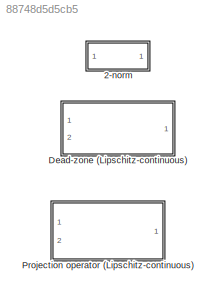
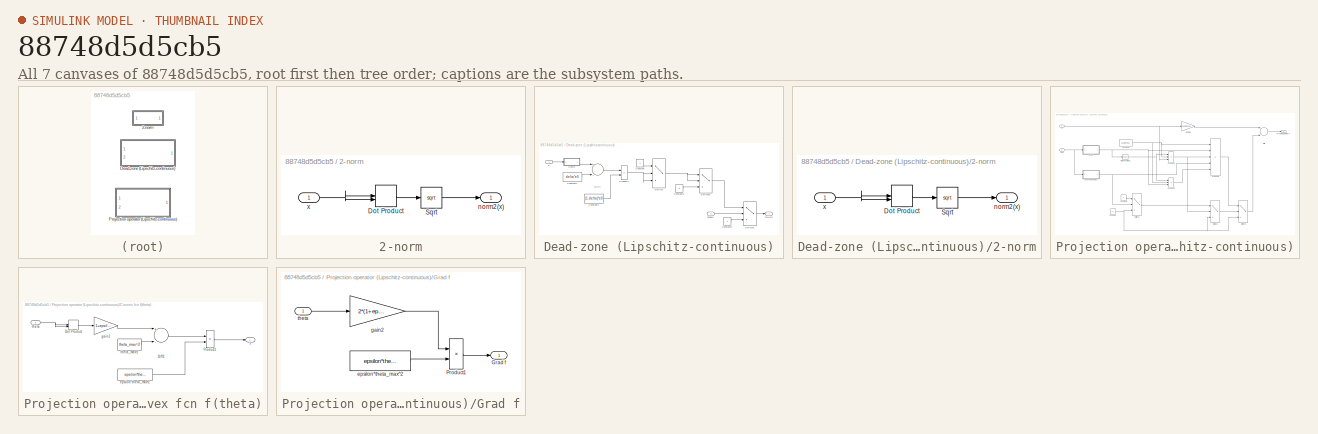
[diagram: thumbnail index - all 7 canvases of the model, root first then tree order]
MODEL slx_88748d5d5cb5
KIND model
BLOCK [SubSystem] 2-norm
  FunctionWithSeparateData = off
  MaskHideContents = off
  MinAlgLoopOccurrences = off
  Opaque = off
  Ports = [1, 1]
  PropExecContextOutsideSubsystem = off
  RTWSystemCode = Auto
  RequestExecContextInheritance = off
BLOCK [DotProduct] 2-norm/Dot Product
  OutDataTypeStr = Inherit: Inherit via internal rule
BLOCK [Sqrt] 2-norm/Sqrt
BLOCK [Outport] 2-norm/norm2(x)
  IconDisplay = Port number
BLOCK [Inport] 2-norm/x
  IconDisplay = Port number
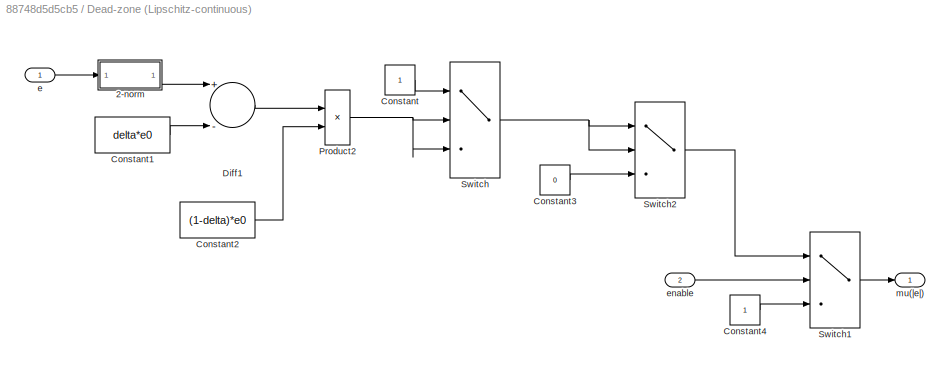
BLOCK [SubSystem] Dead-zone (Lipschitz-continuous)
  FunctionWithSeparateData = off
  MaskHideContents = off
  MinAlgLoopOccurrences = off
  Opaque = off
  Ports = [2, 1]
  PropExecContextOutsideSubsystem = off
  RTWSystemCode = Auto
  RequestExecContextInheritance = off
BLOCK [SubSystem] Dead-zone (Lipschitz-continuous)/2-norm
  FunctionWithSeparateData = off
  MaskHideContents = off
  MinAlgLoopOccurrences = off
  Opaque = off
  Ports = [1, 1]
  PropExecContextOutsideSubsystem = off
  RTWSystemCode = Auto
  RequestExecContextInheritance = off
BLOCK [DotProduct] Dead-zone (Lipschitz-continuous)/2-norm/Dot Product
  OutDataTypeStr = Inherit: Inherit via internal rule
BLOCK [Sqrt] Dead-zone (Lipschitz-continuous)/2-norm/Sqrt
BLOCK [Outport] Dead-zone (Lipschitz-continuous)/2-norm/norm2(x)
  IconDisplay = Port number
BLOCK [Inport] Dead-zone (Lipschitz-continuous)/2-norm/x
  IconDisplay = Port number
BLOCK [Constant] Dead-zone (Lipschitz-continuous)/Constant
BLOCK [Constant] Dead-zone (Lipschitz-continuous)/Constant1
  Value = delta*e0
BLOCK [Constant] Dead-zone (Lipschitz-continuous)/Constant2
  Value = (1-delta)*e0
BLOCK [Constant] Dead-zone (Lipschitz-continuous)/Constant3
  Value = 0
BLOCK [Constant] Dead-zone (Lipschitz-continuous)/Constant4
BLOCK [Sum] Dead-zone (Lipschitz-continuous)/Diff1
  Inputs = +-
  Ports = [2, 1]
  SaturateOnIntegerOverflow = off
BLOCK [Product] Dead-zone (Lipschitz-continuous)/Product2
  InputSameDT = off
  Inputs = */
  OutDataTypeStr = Inherit: Inherit via internal rule
  Ports = [2, 1]
  RndMeth = Floor
  SaturateOnIntegerOverflow = off
BLOCK [Switch] Dead-zone (Lipschitz-continuous)/Switch
  SaturateOnIntegerOverflow = off
  Threshold = 1
  ZeroCross = off
BLOCK [Switch] Dead-zone (Lipschitz-continuous)/Switch1
  SaturateOnIntegerOverflow = off
  Threshold = 0.5
  ZeroCross = off
BLOCK [Switch] Dead-zone (Lipschitz-continuous)/Switch2
  SaturateOnIntegerOverflow = off
  ZeroCross = off
BLOCK [Inport] Dead-zone (Lipschitz-continuous)/e
  IconDisplay = Port number
BLOCK [Inport] Dead-zone (Lipschitz-continuous)/enable
  IconDisplay = Port number
  Port = 2
BLOCK [Outport] Dead-zone (Lipschitz-continuous)/mu(|e|)
  IconDisplay = Port number
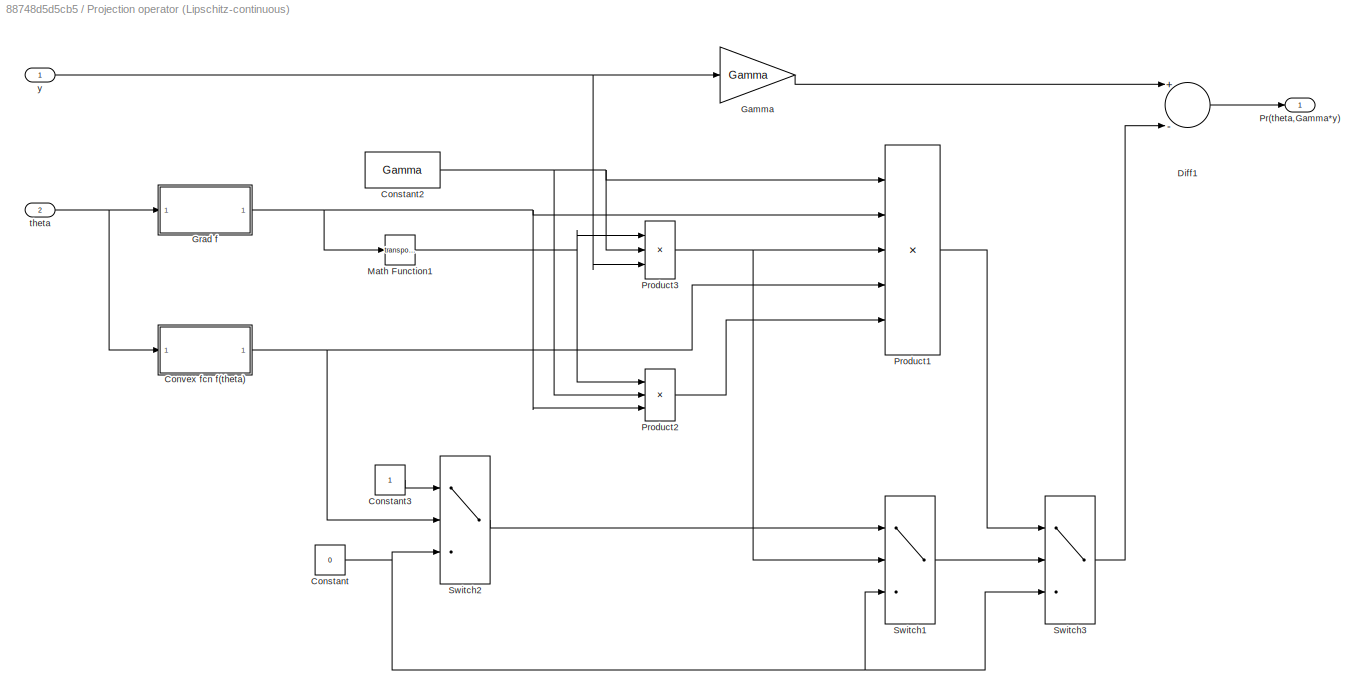
BLOCK [SubSystem] Projection operator (Lipschitz-continuous)
  FunctionWithSeparateData = off
  MaskHideContents = off
  MinAlgLoopOccurrences = off
  Opaque = off
  Ports = [2, 1]
  PropExecContextOutsideSubsystem = off
  RTWSystemCode = Auto
  RequestExecContextInheritance = off
BLOCK [Constant] Projection operator (Lipschitz-continuous)/Constant
  Value = 0
BLOCK [Constant] Projection operator (Lipschitz-continuous)/Constant2
  Value = Gamma
BLOCK [Constant] Projection operator (Lipschitz-continuous)/Constant3
BLOCK [SubSystem] Projection operator (Lipschitz-continuous)/Convex fcn f(theta)
  FunctionWithSeparateData = off
  MaskHideContents = off
  MinAlgLoopOccurrences = off
  Opaque = off
  Ports = [1, 1]
  PropExecContextOutsideSubsystem = off
  RTWSystemCode = Auto
  RequestExecContextInheritance = off
BLOCK [Sum] Projection operator (Lipschitz-continuous)/Convex fcn f(theta)/Diff2
  Inputs = +-
  Ports = [2, 1]
  SaturateOnIntegerOverflow = off
BLOCK [DotProduct] Projection operator (Lipschitz-continuous)/Convex fcn f(theta)/Dot Product
  OutDataTypeStr = Inherit: Inherit via internal rule
BLOCK [Product] Projection operator (Lipschitz-continuous)/Convex fcn f(theta)/Product1
  InputSameDT = off
  Inputs = */
  OutDataTypeStr = Inherit: Inherit via internal rule
  Ports = [2, 1]
  RndMeth = Floor
  SaturateOnIntegerOverflow = off
BLOCK [Constant] Projection operator (Lipschitz-continuous)/Convex fcn f(theta)/epsilon*theta_max^2
  Value = epsilon*theta_max^2
BLOCK [Outport] Projection operator (Lipschitz-continuous)/Convex fcn f(theta)/f
  IconDisplay = Port number
BLOCK [Gain] Projection operator (Lipschitz-continuous)/Convex fcn f(theta)/gain2
  Gain = 1+epsilon
BLOCK [Inport] Projection operator (Lipschitz-continuous)/Convex fcn f(theta)/theta
  IconDisplay = Port number
BLOCK [Constant] Projection operator (Lipschitz-continuous)/Convex fcn f(theta)/theta_max^2
  Value = theta_max^2
BLOCK [Sum] Projection operator (Lipschitz-continuous)/Diff1
  Inputs = +-
  Ports = [2, 1]
  SaturateOnIntegerOverflow = off
BLOCK [Gain] Projection operator (Lipschitz-continuous)/Gamma
  Gain = Gamma
  Multiplication = Matrix(K*u)
BLOCK [SubSystem] Projection operator (Lipschitz-continuous)/Grad f
  FunctionWithSeparateData = off
  MaskHideContents = off
  MinAlgLoopOccurrences = off
  Opaque = off
  Ports = [1, 1]
  PropExecContextOutsideSubsystem = off
  RTWSystemCode = Auto
  RequestExecContextInheritance = off
BLOCK [Outport] Projection operator (Lipschitz-continuous)/Grad f/Grad f
  IconDisplay = Port number
BLOCK [Product] Projection operator (Lipschitz-continuous)/Grad f/Product1
  InputSameDT = off
  Inputs = */
  OutDataTypeStr = Inherit: Inherit via internal rule
  Ports = [2, 1]
  RndMeth = Floor
  SaturateOnIntegerOverflow = off
BLOCK [Constant] Projection operator (Lipschitz-continuous)/Grad f/epsilon*theta_max^2
  Value = epsilon*theta_max^2
BLOCK [Gain] Projection operator (Lipschitz-continuous)/Grad f/gain2
  Gain = 2*(1+epsilon)
BLOCK [Inport] Projection operator (Lipschitz-continuous)/Grad f/theta
  IconDisplay = Port number
BLOCK [Math] Projection operator (Lipschitz-continuous)/Math Function1
  Operator = transpose
  Ports = [1, 1]
BLOCK [Outport] Projection operator (Lipschitz-continuous)/Pr(theta,Gamma*y)
  IconDisplay = Port number
BLOCK [Product] Projection operator (Lipschitz-continuous)/Product1
  InputSameDT = off
  Inputs = ****/
  Multiplication = Matrix(*)
  OutDataTypeStr = Inherit: Inherit via internal rule
  Ports = [5, 1]
  RndMeth = Floor
  SaturateOnIntegerOverflow = off
BLOCK [Product] Projection operator (Lipschitz-continuous)/Product2
  InputSameDT = off
  Inputs = ***
  Multiplication = Matrix(*)
  OutDataTypeStr = Inherit: Inherit via internal rule
  Ports = [3, 1]
  RndMeth = Floor
  SaturateOnIntegerOverflow = off
BLOCK [Product] Projection operator (Lipschitz-continuous)/Product3
  InputSameDT = off
  Inputs = ***
  Multiplication = Matrix(*)
  OutDataTypeStr = Inherit: Inherit via internal rule
  Ports = [3, 1]
  RndMeth = Floor
  SaturateOnIntegerOverflow = off
BLOCK [Switch] Projection operator (Lipschitz-continuous)/Switch1
  Criteria = u2 > Threshold
  SaturateOnIntegerOverflow = off
  ZeroCross = off
BLOCK [Switch] Projection operator (Lipschitz-continuous)/Switch2
  SaturateOnIntegerOverflow = off
  ZeroCross = off
BLOCK [Switch] Projection operator (Lipschitz-continuous)/Switch3
  Criteria = u2 > Threshold
  SaturateOnIntegerOverflow = off
  Threshold = 0.5
  ZeroCross = off
BLOCK [Inport] Projection operator (Lipschitz-continuous)/theta
  IconDisplay = Port number
  Port = 2
BLOCK [Inport] Projection operator (Lipschitz-continuous)/y
  IconDisplay = Port number
LINE 2-norm/Dot Product:1 -> 2-norm/Sqrt:1
LINE 2-norm/Sqrt:1 -> 2-norm/norm2(x):1
NET 2-norm/x:1 -> 2-norm/Dot Product:1, 2-norm/Dot Product:2
LINE Dead-zone (Lipschitz-continuous)/2-norm/Dot Product:1 -> Dead-zone (Lipschitz-continuous)/2-norm/Sqrt:1
LINE Dead-zone (Lipschitz-continuous)/2-norm/Sqrt:1 -> Dead-zone (Lipschitz-continuous)/2-norm/norm2(x):1
NET Dead-zone (Lipschitz-continuous)/2-norm/x:1 -> Dead-zone (Lipschitz-continuous)/2-norm/Dot Product:1, Dead-zone (Lipschitz-continuous)/2-norm/Dot Product:2
LINE Dead-zone (Lipschitz-continuous)/2-norm:1 -> Dead-zone (Lipschitz-continuous)/Diff1:1
LINE Dead-zone (Lipschitz-continuous)/Constant1:1 -> Dead-zone (Lipschitz-continuous)/Diff1:2
LINE Dead-zone (Lipschitz-continuous)/Constant2:1 -> Dead-zone (Lipschitz-continuous)/Product2:2
LINE Dead-zone (Lipschitz-continuous)/Constant3:1 -> Dead-zone (Lipschitz-continuous)/Switch2:3
LINE Dead-zone (Lipschitz-continuous)/Constant4:1 -> Dead-zone (Lipschitz-continuous)/Switch1:3
LINE Dead-zone (Lipschitz-continuous)/Constant:1 -> Dead-zone (Lipschitz-continuous)/Switch:1
LINE Dead-zone (Lipschitz-continuous)/Diff1:1 -> Dead-zone (Lipschitz-continuous)/Product2:1
NET Dead-zone (Lipschitz-continuous)/Product2:1 -> Dead-zone (Lipschitz-continuous)/Switch:2, Dead-zone (Lipschitz-continuous)/Switch:3
LINE Dead-zone (Lipschitz-continuous)/Switch1:1 -> Dead-zone (Lipschitz-continuous)/mu(|e|):1
LINE Dead-zone (Lipschitz-continuous)/Switch2:1 -> Dead-zone (Lipschitz-continuous)/Switch1:1
NET Dead-zone (Lipschitz-continuous)/Switch:1 -> Dead-zone (Lipschitz-continuous)/Switch2:1, Dead-zone (Lipschitz-continuous)/Switch2:2
LINE Dead-zone (Lipschitz-continuous)/e:1 -> Dead-zone (Lipschitz-continuous)/2-norm:1
LINE Dead-zone (Lipschitz-continuous)/enable:1 -> Dead-zone (Lipschitz-continuous)/Switch1:2
NET Projection operator (Lipschitz-continuous)/Constant2:1 -> Projection operator (Lipschitz-continuous)/Product1:1, Projection operator (Lipschitz-continuous)/Product2:2, Projection operator (Lipschitz-continuous)/Product3:2
LINE Projection operator (Lipschitz-continuous)/Constant3:1 -> Projection operator (Lipschitz-continuous)/Switch2:1
NET Projection operator (Lipschitz-continuous)/Constant:1 -> Projection operator (Lipschitz-continuous)/Switch1:3, Projection operator (Lipschitz-continuous)/Switch2:3, Projection operator (Lipschitz-continuous)/Switch3:3
LINE Projection operator (Lipschitz-continuous)/Convex fcn f(theta)/Diff2:1 -> Projection operator (Lipschitz-continuous)/Convex fcn f(theta)/Product1:1
LINE Projection operator (Lipschitz-continuous)/Convex fcn f(theta)/Dot Product:1 -> Projection operator (Lipschitz-continuous)/Convex fcn f(theta)/gain2:1
LINE Projection operator (Lipschitz-continuous)/Convex fcn f(theta)/Product1:1 -> Projection operator (Lipschitz-continuous)/Convex fcn f(theta)/f:1
LINE Projection operator (Lipschitz-continuous)/Convex fcn f(theta)/epsilon*theta_max^2:1 -> Projection operator (Lipschitz-continuous)/Convex fcn f(theta)/Product1:2
LINE Projection operator (Lipschitz-continuous)/Convex fcn f(theta)/gain2:1 -> Projection operator (Lipschitz-continuous)/Convex fcn f(theta)/Diff2:1
NET Projection operator (Lipschitz-continuous)/Convex fcn f(theta)/theta:1 -> Projection operator (Lipschitz-continuous)/Convex fcn f(theta)/Dot Product:1, Projection operator (Lipschitz-continuous)/Convex fcn f(theta)/Dot Product:2
LINE Projection operator (Lipschitz-continuous)/Convex fcn f(theta)/theta_max^2:1 -> Projection operator (Lipschitz-continuous)/Convex fcn f(theta)/Diff2:2
NET Projection operator (Lipschitz-continuous)/Convex fcn f(theta):1 -> Projection operator (Lipschitz-continuous)/Product1:4, Projection operator (Lipschitz-continuous)/Switch2:2
LINE Projection operator (Lipschitz-continuous)/Diff1:1 -> Projection operator (Lipschitz-continuous)/Pr(theta,Gamma*y):1
LINE Projection operator (Lipschitz-continuous)/Gamma:1 -> Projection operator (Lipschitz-continuous)/Diff1:1
LINE Projection operator (Lipschitz-continuous)/Grad f/Product1:1 -> Projection operator (Lipschitz-continuous)/Grad f/Grad f:1
LINE Projection operator (Lipschitz-continuous)/Grad f/epsilon*theta_max^2:1 -> Projection operator (Lipschitz-continuous)/Grad f/Product1:2
LINE Projection operator (Lipschitz-continuous)/Grad f/gain2:1 -> Projection operator (Lipschitz-continuous)/Grad f/Product1:1
LINE Projection operator (Lipschitz-continuous)/Grad f/theta:1 -> Projection operator (Lipschitz-continuous)/Grad f/gain2:1
NET Projection operator (Lipschitz-continuous)/Grad f:1 -> Projection operator (Lipschitz-continuous)/Math Function1:1, Projection operator (Lipschitz-continuous)/Product1:2, Projection operator (Lipschitz-continuous)/Product2:3
NET Projection operator (Lipschitz-continuous)/Math Function1:1 -> Projection operator (Lipschitz-continuous)/Product2:1, Projection operator (Lipschitz-continuous)/Product3:1
LINE Projection operator (Lipschitz-continuous)/Product1:1 -> Projection operator (Lipschitz-continuous)/Switch3:1
LINE Projection operator (Lipschitz-continuous)/Product2:1 -> Projection operator (Lipschitz-continuous)/Product1:5
NET Projection operator (Lipschitz-continuous)/Product3:1 -> Projection operator (Lipschitz-continuous)/Product1:3, Projection operator (Lipschitz-continuous)/Switch1:2
LINE Projection operator (Lipschitz-continuous)/Switch1:1 -> Projection operator (Lipschitz-continuous)/Switch3:2
LINE Projection operator (Lipschitz-continuous)/Switch2:1 -> Projection operator (Lipschitz-continuous)/Switch1:1
LINE Projection operator (Lipschitz-continuous)/Switch3:1 -> Projection operator (Lipschitz-continuous)/Diff1:2
NET Projection operator (Lipschitz-continuous)/theta:1 -> Projection operator (Lipschitz-continuous)/Convex fcn f(theta):1, Projection operator (Lipschitz-continuous)/Grad f:1
NET Projection operator (Lipschitz-continuous)/y:1 -> Projection operator (Lipschitz-continuous)/Gamma:1, Projection operator (Lipschitz-continuous)/Product3:3
note: NET lines group one-source signal fan-out (src -> all destinations, sorted); 1:1 wires keep LINE
